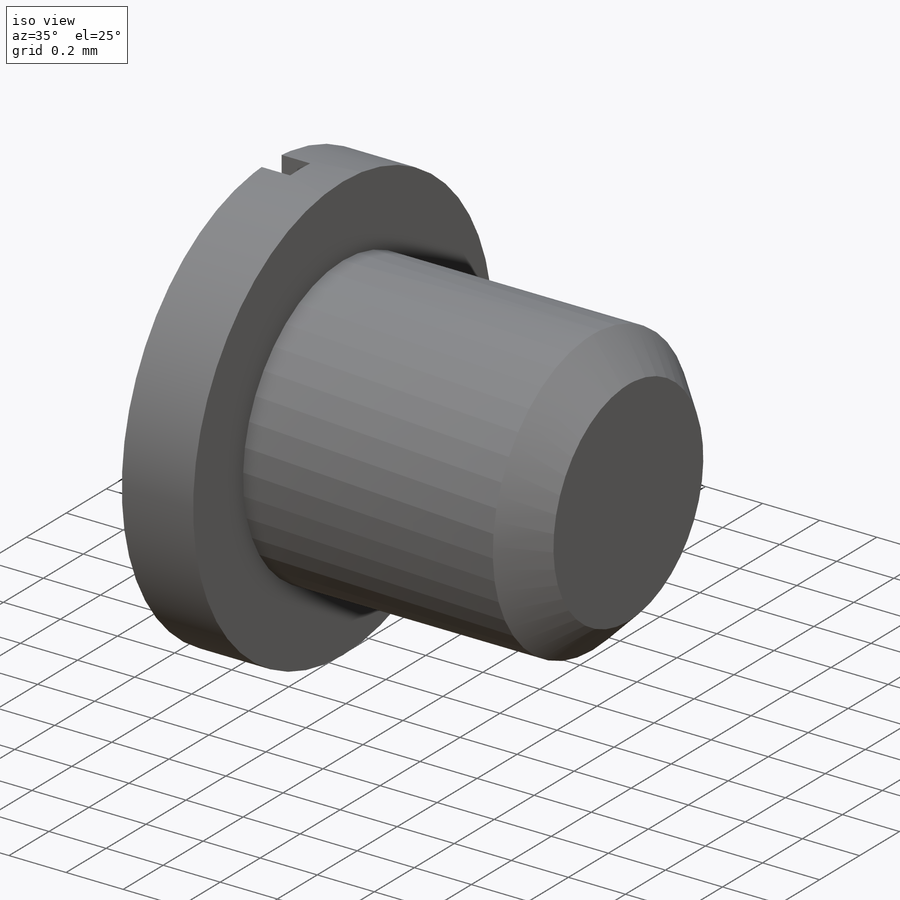
[diagram: iso view]
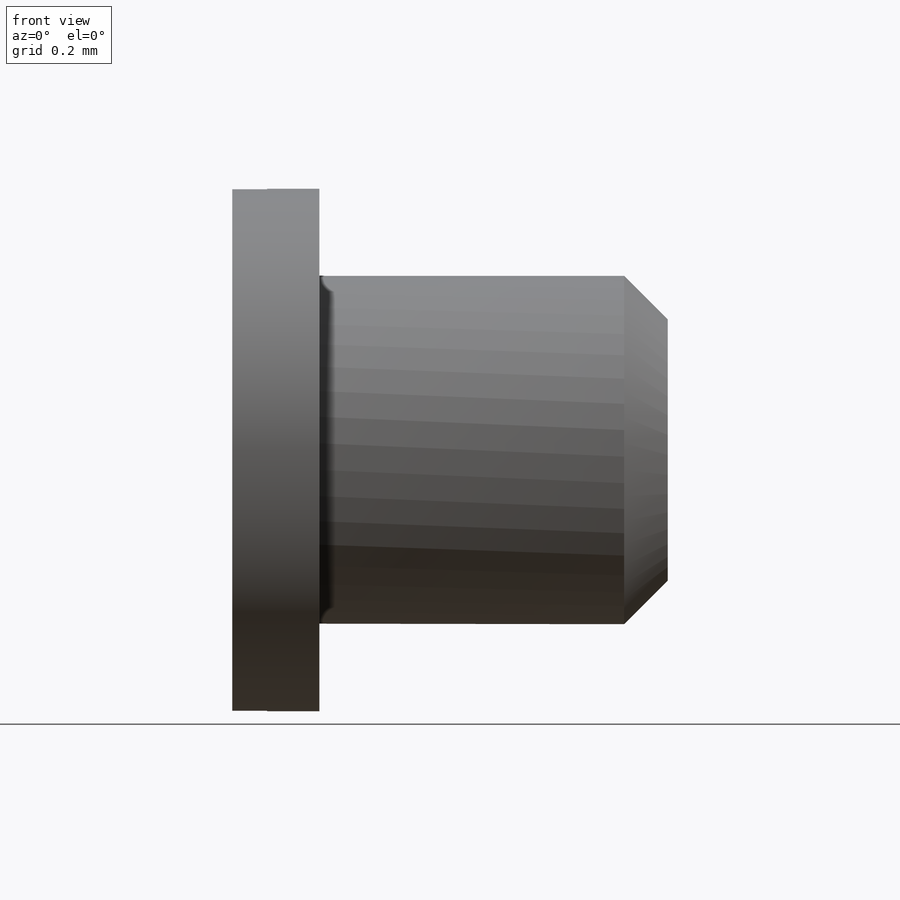
[diagram: front view]
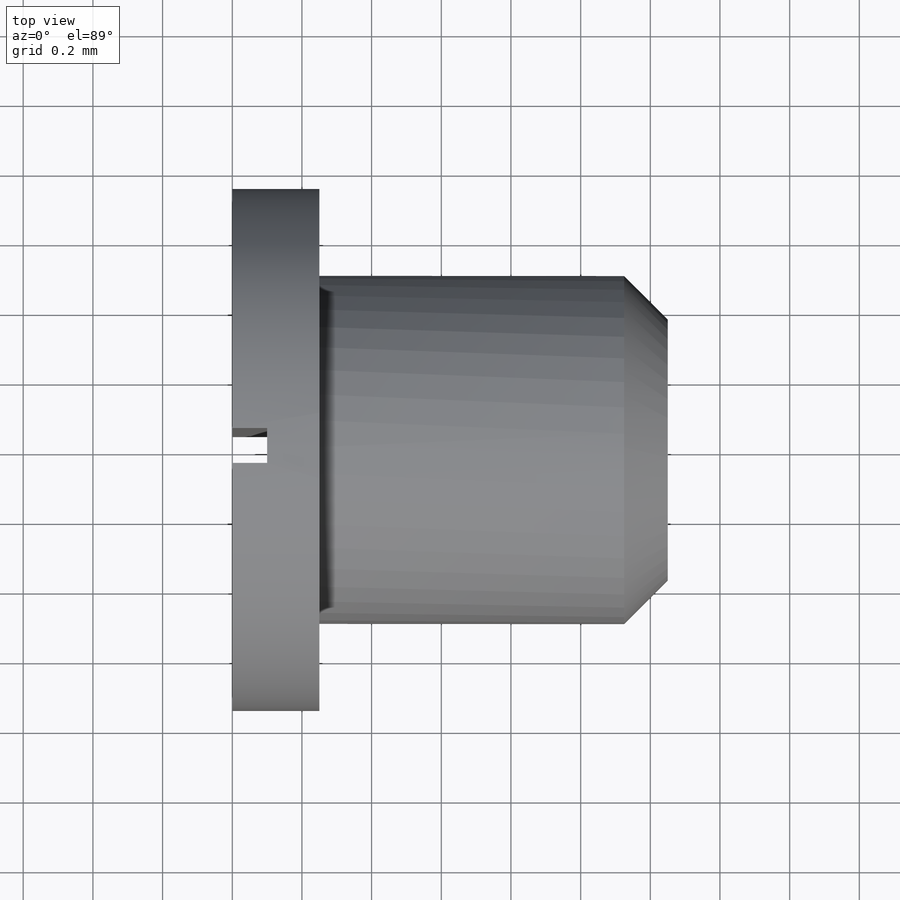
[diagram: top view]
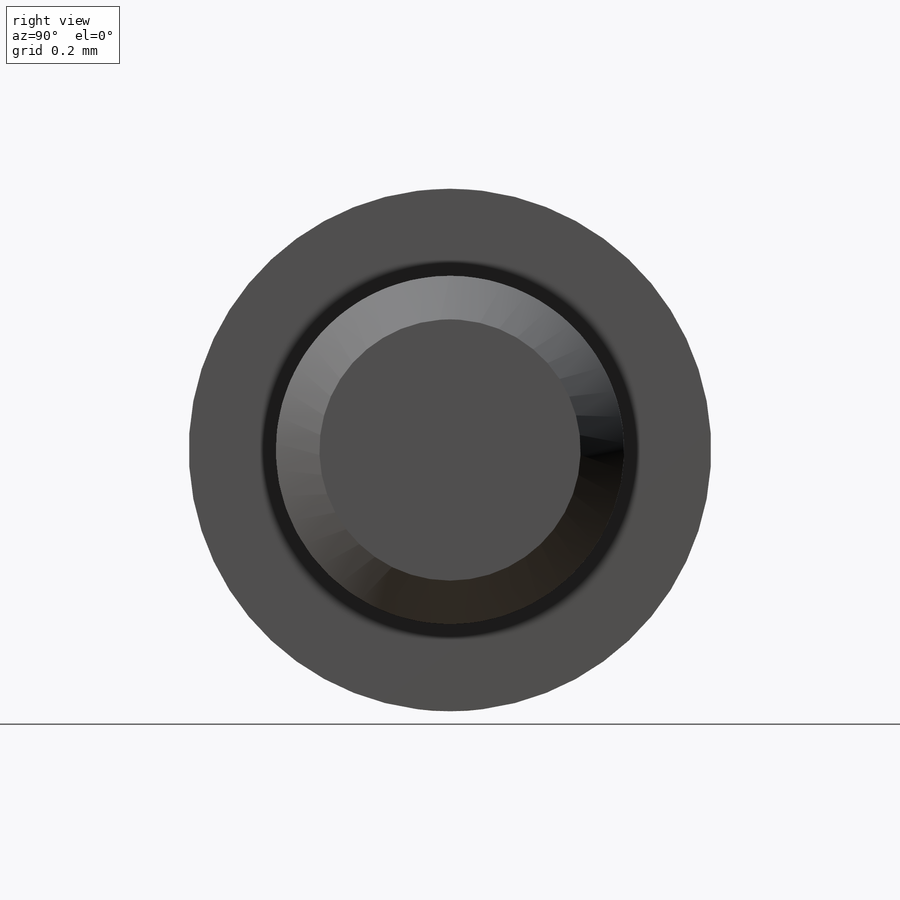
[diagram: right view]
SOLIDWORKS PART (.sldprt)
format: sldprt  version: not decoded by parser v0  size: 139,264 bytes
history: native  units: mm
features: sketch x2, material x1, revolve x1, thread x1, chamfer x1, cut_extrude x1 (+11 scaffold rows collapsed)
feature tree (18):
  scaffold x11  (default folders/planes/origin — collapsed)
  material  "Material <sin especificar>"
  sketch  "Croquis1"  dims[D1=0.75mm D2=0.25mm D3=1.25mm D4=0.5mm]
  revolve  "Revolución1"  [1 undecoded]
  thread  "Rosca cosmética1"  Diameter=0.75mm  [1 undecoded]
  chamfer  "Chaflán1"  Distance=0.125mm Angle=45deg
  sketch  "Croquis5"  dims[D1=0.1mm]
  cut_extrude  "Cortar-Extruir6"  Depth=0.1mm
decode coverage: 5 of 6 modeling features carry decoded parameters
note: 2 parameter values undecoded
note: suppression state not decoded; provenance and decode notes live in map.json
